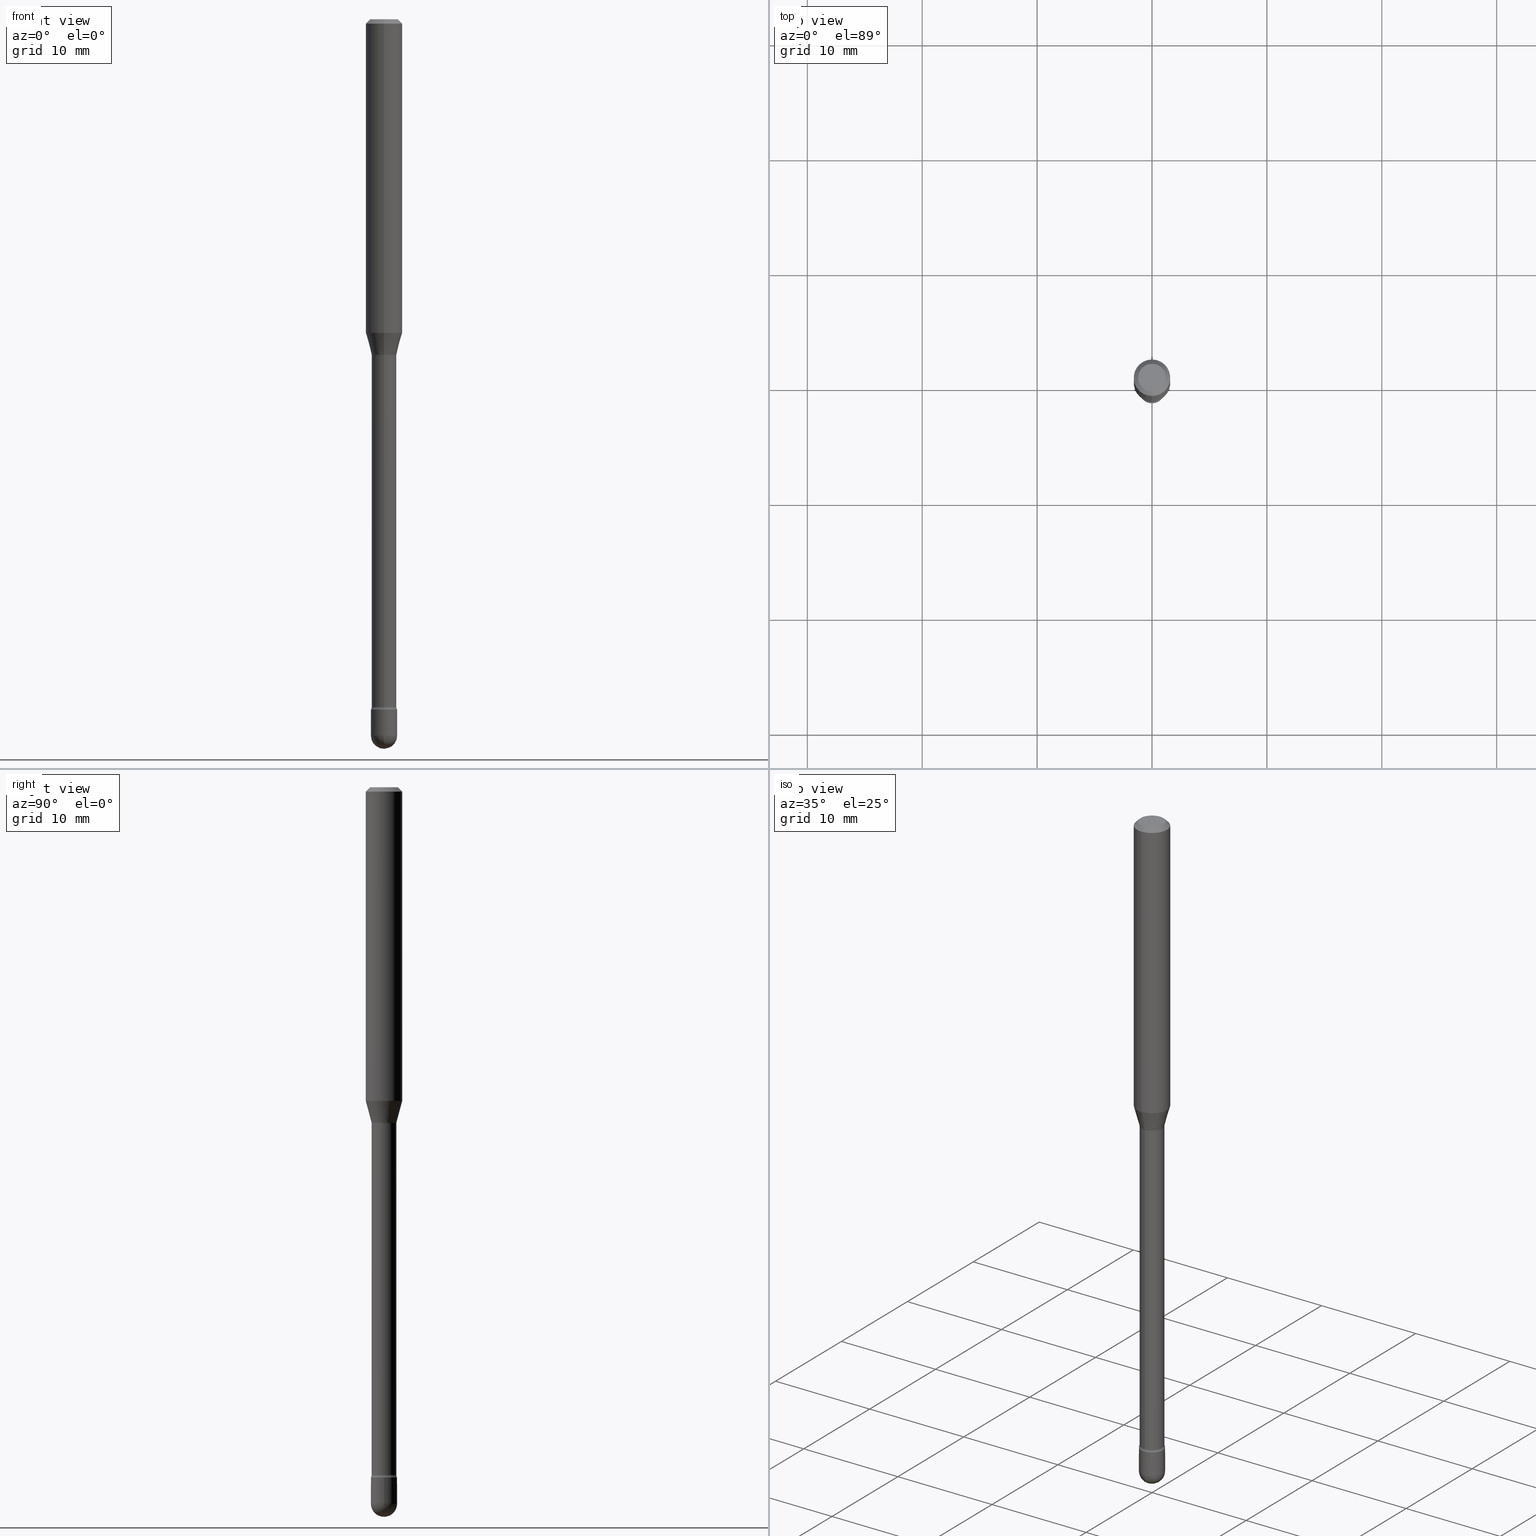
[diagram: canonical four-view strip — front | top / right | iso, engineering-drawing reading convention]
A machine part, canonical four-view strip (front | top / right | iso — engineering-drawing reading convention). The complete STEP part file that produces these views, byte-faithful:
ISO-10303-21;
HEADER;
FILE_DESCRIPTION (( 'STEP AP203' ),
    '1' );
FILE_NAME ('09547.STEP',
    '2024-04-10T00:33:40',
    ( '' ),
    ( '' ),
    'SwSTEP 2.0',
    'SolidWorks 2023',
    '' );
FILE_SCHEMA (( 'CONFIG_CONTROL_DESIGN' ));
ENDSEC;

DATA;
#1 = ADVANCED_FACE ( 'NONE', ( #401 ), #247, .T. ) ;
#2 = APPROVAL_DATE_TIME ( #309, #325 ) ;
#3 = DIRECTION ( 'NONE',  ( -2.445468806185136597E-29, 3.491481338843145583E-15, 1.000000000000000000 ) ) ;
#4 = CIRCLE ( 'NONE', #341, 0.04499999999999999833 ) ;
#5 = CC_DESIGN_APPROVAL ( #536, ( #217 ) ) ;
#6 = APPLICATION_PROTOCOL_DEFINITION ( 'international standard', 'config_control_design', 1994, #410 ) ;
#7 = EDGE_CURVE ( 'NONE', #386, #478, #167, .T. ) ;
#8 = DIRECTION ( 'NONE',  ( -6.982962677686265922E-15, -1.000000000000000000, 3.491385198703219362E-15 ) ) ;
#9 = EDGE_CURVE ( 'NONE', #228, #77, #80, .T. ) ;
#10 = ORIENTED_EDGE ( 'NONE', *, *, #182, .F. ) ;
#11 = DIRECTION ( 'NONE',  ( -6.982962677686266711E-15, -1.000000000000000000, 3.229134744283999085E-15 ) ) ;
#12 = AXIS2_PLACEMENT_3D ( 'NONE', #405, #231, #181 ) ;
#13 = CARTESIAN_POINT ( 'NONE',  ( -2.989484015155474902E-16, -0.04281111260566799331, -1.148092501787272957 ) ) ;
#14 = PRODUCT_DEFINITION_FORMATION_WITH_SPECIFIED_SOURCE ( 'ANY', '', #206, .NOT_KNOWN. ) ;
#15 = CIRCLE ( 'NONE', #414, 0.04499999999999999833 ) ;
#16 = DIRECTION ( 'NONE',  ( -6.982962677686265922E-15, -1.000000000000000000, 3.491385198703219756E-15 ) ) ;
#17 = EDGE_CURVE ( 'NONE', #424, #209, #183, .T. ) ;
#18 = DIRECTION ( 'NONE',  ( 6.982962677686265922E-15, 1.000000000000000000, -6.070773319253922996E-15 ) ) ;
#19 = CARTESIAN_POINT ( 'NONE',  ( 3.101519041593418202E-16, 0.04229999999999190657, -2.356414547187247965 ) ) ;
#20 = EDGE_LOOP ( 'NONE', ( #523, #426, #47, #511 ) ) ;
#21 = CONICAL_SURFACE ( 'NONE', #184, 0.06250000000000000000, 0.7853981633974483900 ) ;
#22 = LOCAL_TIME ( 20, 33, 40.00000000000000000, #343 ) ;
#23 = DIRECTION ( 'NONE',  ( -6.982962677686265922E-15, -1.000000000000000000, 3.491385198703219756E-15 ) ) ;
#24 = ADVANCED_FACE ( 'NONE', ( #446 ), #62, .F. ) ;
#25 = CYLINDRICAL_SURFACE ( 'NONE', #108, 0.04499999999999999833 ) ;
#26 = CARTESIAN_POINT ( 'NONE',  ( -2.953793212661009010E-16, -0.04230000000000402188, -1.151974787463810657 ) ) ;
#27 = EDGE_CURVE ( 'NONE', #559, #245, #460, .T. ) ;
#28 = ORIENTED_EDGE ( 'NONE', *, *, #254, .F. ) ;
#29 = DIRECTION ( 'NONE',  ( 2.445535940486029203E-29, -3.491385198703219756E-15, -1.000000000000000000 ) ) ;
#30 = CIRCLE ( 'NONE', #155, 0.04749999999999999362 ) ;
#31 = FACE_OUTER_BOUND ( 'NONE', #116, .T. ) ;
#32 = CARTESIAN_POINT ( 'NONE',  ( 0.04499999999999999833, -8.571586686859921733E-15, -2.365000000000000213 ) ) ;
#33 = ORIENTED_EDGE ( 'NONE', *, *, #393, .F. ) ;
#34 = CYLINDRICAL_SURFACE ( 'NONE', #500, 0.04499999999999999833 ) ;
#35 = ORIENTED_EDGE ( 'NONE', *, *, #212, .F. ) ;
#36 = PERSON_AND_ORGANIZATION ( #129, #366 ) ;
#37 = FACE_OUTER_BOUND ( 'NONE', #526, .T. ) ;
#38 = ORIENTED_EDGE ( 'NONE', *, *, #111, .F. ) ;
#39 = CIRCLE ( 'NONE', #12, 0.04230000000000013610 ) ;
#40 = LOCAL_TIME ( 20, 33, 40.00000000000000000, #273 ) ;
#41 = VECTOR ( 'NONE', #51, 39.37007874015748143 ) ;
#42 = EDGE_LOOP ( 'NONE', ( #318, #555, #562, #373 ) ) ;
#43 = DIRECTION ( 'NONE',  ( -2.445468806185136597E-29, 3.491481338843145583E-15, 1.000000000000000000 ) ) ;
#44 = DIRECTION ( 'NONE',  ( 6.982962677686265133E-15, 1.000000000000000000, 0.000000000000000000 ) ) ;
#45 = EDGE_CURVE ( 'NONE', #194, #478, #400, .T. ) ;
#46 = DATE_AND_TIME ( #439, #40 ) ;
#47 = ORIENTED_EDGE ( 'NONE', *, *, #308, .T. ) ;
#48 = CARTESIAN_POINT ( 'NONE',  ( -1.169113584055446105E-44, 1.669184350826100908E-30, 4.780733988912460139E-16 ) ) ;
#49 = AXIS2_PLACEMENT_3D ( 'NONE', #135, #319, #357 ) ;
#50 = EDGE_CURVE ( 'NONE', #386, #472, #147, .T. ) ;
#51 = DIRECTION ( 'NONE',  ( -2.445535940486029483E-29, 3.491385198703219756E-15, 1.000000000000000000 ) ) ;
#52 = ORIENTED_EDGE ( 'NONE', *, *, #372, .T. ) ;
#53 = DIRECTION ( 'NONE',  ( -2.445535940486029483E-29, 3.491385198703219756E-15, 1.000000000000000000 ) ) ;
#54 = DATE_AND_TIME ( #226, #193 ) ;
#55 = LINE ( 'NONE', #278, #41 ) ;
#56 = AXIS2_PLACEMENT_3D ( 'NONE', #207, #558, #202 ) ;
#57 = ORIENTED_EDGE ( 'NONE', *, *, #106, .T. ) ;
#58 = ORIENTED_EDGE ( 'NONE', *, *, #250, .T. ) ;
#59 = CARTESIAN_POINT ( 'NONE',  ( 2.807701476123297735E-29, -4.008433167482235797E-15, -1.148092501787273179 ) ) ;
#60 = CARTESIAN_POINT ( 'NONE',  ( 2.817118408254502347E-29, -4.022098473247694493E-15, -1.151974787463810879 ) ) ;
#61 = CONICAL_SURFACE ( 'NONE', #385, 0.04281111260566397569, 0.2617993877991497409 ) ;
#62 = TOROIDAL_SURFACE ( 'NONE', #491, 0.05730000000000012861, 0.01499999999999998904 ) ;
#63 = CARTESIAN_POINT ( 'NONE',  ( 6.003625919184510659E-29, -8.571586686859923311E-15, -2.455000000000000071 ) ) ;
#64 = CARTESIAN_POINT ( 'NONE',  ( -3.773273898774340269E-16, -0.04749999999999999362, 8.308919821021109752E-17 ) ) ;
#65 = ORIENTED_EDGE ( 'NONE', *, *, #229, .F. ) ;
#66 = CARTESIAN_POINT ( 'NONE',  ( 2.817118408254502347E-29, -4.022098473247694493E-15, -1.151974787463810879 ) ) ;
#67 = ADVANCED_FACE ( 'NONE', ( #501 ), #367, .T. ) ;
#68 = CARTESIAN_POINT ( 'NONE',  ( -4.364351673553916201E-16, -0.06250000000000000000, 6.962849738101973226E-16 ) ) ;
#69 = EDGE_LOOP ( 'NONE', ( #337, #356 ) ) ;
#70 = CARTESIAN_POINT ( 'NONE',  ( 3.142333204959397663E-16, 0.04499999999999174105, -2.365000000000000213 ) ) ;
#71 = AXIS2_PLACEMENT_3D ( 'NONE', #200, #461, #158 ) ;
#72 = DIRECTION ( 'NONE',  ( -2.445468806185136597E-29, 3.491481338843145583E-15, 1.000000000000000000 ) ) ;
#73 = EDGE_LOOP ( 'NONE', ( #542, #170 ) ) ;
#74 = CARTESIAN_POINT ( 'NONE',  ( -4.287811248607203282E-16, -0.06250000000000005551, -0.01499999999999986587 ) ) ;
#75 = VERTEX_POINT ( 'NONE', #19 ) ;
#76 = APPROVAL_DATE_TIME ( #220, #396 ) ;
#77 = VERTEX_POINT ( 'NONE', #453 ) ;
#78 = CARTESIAN_POINT ( 'NONE',  ( 0.000000000000000000, 0.000000000000000000, 0.000000000000000000 ) ) ;
#79 = ADVANCED_FACE ( 'NONE', ( #87 ), #282, .T. ) ;
#80 = CIRCLE ( 'NONE', #531, 0.06250000000000000000 ) ;
#81 = AXIS2_PLACEMENT_3D ( 'NONE', #197, #336, #243 ) ;
#82 =( NAMED_UNIT ( * ) PLANE_ANGLE_UNIT ( ) SI_UNIT ( $, .RADIAN. ) );
#83 = PERSON_AND_ORGANIZATION_ROLE ( 'classification_officer' ) ;
#84 = EDGE_LOOP ( 'NONE', ( #163, #513, #408, #90 ) ) ;
#85 = DATE_TIME_ROLE ( 'creation_date' ) ;
#86 = ORIENTED_EDGE ( 'NONE', *, *, #166, .F. ) ;
#87 = FACE_OUTER_BOUND ( 'NONE', #345, .T. ) ;
#88 = CIRCLE ( 'NONE', #235, 0.04230000000000013610 ) ;
#89 = LOCAL_TIME ( 20, 33, 40.00000000000000000, #483 ) ;
#90 = ORIENTED_EDGE ( 'NONE', *, *, #466, .F. ) ;
#91 = DIRECTION ( 'NONE',  ( -2.445535940486029483E-29, 3.491385198703219756E-15, 1.000000000000000000 ) ) ;
#92 = EDGE_CURVE ( 'NONE', #75, #194, #191, .T. ) ;
#93 = DIRECTION ( 'NONE',  ( -2.445468806185136597E-29, 3.491481338843145583E-15, 1.000000000000000000 ) ) ;
#94 = CC_DESIGN_PERSON_AND_ORGANIZATION_ASSIGNMENT ( #214, #565, ( #450 ) ) ;
#95 = CARTESIAN_POINT ( 'NONE',  ( 2.807701476123297735E-29, -4.008433167482235797E-15, -1.148092501787273179 ) ) ;
#96 = VECTOR ( 'NONE', #486, 39.37007874015748854 ) ;
#97 = CARTESIAN_POINT ( 'NONE',  ( 5.762538269587287845E-29, -8.227377418082797086E-15, -2.356414547187247965 ) ) ;
#98 = EDGE_CURVE ( 'NONE', #77, #228, #137, .T. ) ;
#99 = DIRECTION ( 'NONE',  ( -6.982962677686266711E-15, -1.000000000000000000, 3.190582803613979827E-15 ) ) ;
#100 = APPROVAL_DATE_TIME ( #54, #536 ) ;
#101 = ORIENTED_EDGE ( 'NONE', *, *, #495, .F. ) ;
#102 = DESIGN_CONTEXT ( 'detailed design', #363, 'design' ) ;
#103 = EDGE_CURVE ( 'NONE', #77, #422, #55, .T. ) ;
#104 = DIRECTION ( 'NONE',  ( -6.982962677686265922E-15, -1.000000000000000000, 3.491385198703219756E-15 ) ) ;
#105 = DIRECTION ( 'NONE',  ( -2.445535940486029483E-29, 3.491385198703219756E-15, 1.000000000000000000 ) ) ;
#106 = EDGE_CURVE ( 'NONE', #447, #326, #506, .T. ) ;
#107 = DIRECTION ( 'NONE',  ( -2.445468806185136597E-29, 3.491481338843145583E-15, 1.000000000000000000 ) ) ;
#108 = AXIS2_PLACEMENT_3D ( 'NONE', #376, #72, #554 ) ;
#109 = DIRECTION ( 'NONE',  ( -2.445535940486029483E-29, 3.491385198703219756E-15, 1.000000000000000000 ) ) ;
#110 = FACE_OUTER_BOUND ( 'NONE', #454, .T. ) ;
#111 = EDGE_CURVE ( 'NONE', #209, #276, #15, .T. ) ;
#112 = ORIENTED_EDGE ( 'NONE', *, *, #279, .F. ) ;
#113 = CARTESIAN_POINT ( 'NONE',  ( -1.169113584055446105E-44, 1.669184350826100908E-30, 4.780733988912460139E-16 ) ) ;
#114 = DIRECTION ( 'NONE',  ( -6.982962677686266711E-15, -1.000000000000000000, 6.458269488567977659E-15 ) ) ;
#115 = ORIENTED_EDGE ( 'NONE', *, *, #495, .T. ) ;
#116 = EDGE_LOOP ( 'NONE', ( #101, #302, #219, #263 ) ) ;
#117 = CIRCLE ( 'NONE', #256, 0.04281111260566397569 ) ;
#118 = AXIS2_PLACEMENT_3D ( 'NONE', #402, #362, #455 ) ;
#119 = CARTESIAN_POINT ( 'NONE',  ( 5.762696465830526274E-29, -8.227150872058505933E-15, -2.356414547187247521 ) ) ;
#120 = VERTEX_POINT ( 'NONE', #407 ) ;
#121 =( CONVERSION_BASED_UNIT ( 'INCH', #563 ) LENGTH_UNIT ( ) NAMED_UNIT ( #347 ) );
#122 = CARTESIAN_POINT ( 'NONE',  ( 6.115596139613495537E-29, -8.725947891809782708E-15, -2.500000000000000000 ) ) ;
#123 = ADVANCED_FACE ( 'NONE', ( #31 ), #21, .T. ) ;
#124 = APPROVAL_ROLE ( '' ) ;
#125 = EDGE_LOOP ( 'NONE', ( #33, #204, #211, #223, #444 ) ) ;
#126 = DIRECTION ( 'NONE',  ( 0.000000000000000000, 0.000000000000000000, 1.000000000000000000 ) ) ;
#127 = CIRCLE ( 'NONE', #459, 0.04499999999999996364 ) ;
#128 = LOCAL_TIME ( 20, 33, 40.00000000000000000, #171 ) ;
#129 = PERSON ( 'UNSPECIFIED', 'UNSPECIFIED', 'UNSPECIFIED', ('UNSPECIFIED'), ('UNSPECIFIED'), ('UNSPECIFIED') ) ;
#130 = CALENDAR_DATE ( 2024, 9, 4 ) ;
#131 = APPLICATION_PROTOCOL_DEFINITION ( 'international standard', 'config_control_design', 1994, #363 ) ;
#132 = MANIFOLD_SOLID_BREP ( 'Body-Move/Copy2[1]', #215 ) ;
#133 = CARTESIAN_POINT ( 'NONE',  ( -3.142333204958240503E-16, -0.04500000000000824174, -2.364999999999999769 ) ) ;
#134 = ORIENTED_EDGE ( 'NONE', *, *, #361, .T. ) ;
#135 = CARTESIAN_POINT ( 'NONE',  ( 5.783692499249460010E-29, -8.257125994933115699E-15, -2.365000000000000213 ) ) ;
#136 = CIRCLE ( 'NONE', #320, 0.04229999999999999732 ) ;
#137 = CIRCLE ( 'NONE', #295, 0.06250000000000000000 ) ;
#138 = CARTESIAN_POINT ( 'NONE',  ( -0.04499999999999999833, 3.197442310920450718E-16, -2.213520790614707560E-30 ) ) ;
#139 = CARTESIAN_POINT ( 'NONE',  ( 2.807701476123297735E-29, -4.008433167482235797E-15, -1.148092501787273179 ) ) ;
#140 = PRODUCT_DEFINITION_SHAPE ( 'NONE', 'NONE',  #450 ) ;
#141 = CC_DESIGN_PERSON_AND_ORGANIZATION_ASSIGNMENT ( #169, #525, ( #206 ) ) ;
#142 = VERTEX_POINT ( 'NONE', #370 ) ;
#143 = DIRECTION ( 'NONE',  ( -2.445468806185136877E-29, 3.491481338843145188E-15, 1.000000000000000000 ) ) ;
#144 = AXIS2_PLACEMENT_3D ( 'NONE', #66, #299, #104 ) ;
#145 = SHAPE_DEFINITION_REPRESENTATION ( #140, #176 ) ;
#146 = DIRECTION ( 'NONE',  ( -2.445535940486029483E-29, 3.491385198703219756E-15, 1.000000000000000000 ) ) ;
#147 = CIRCLE ( 'NONE', #435, 0.04281111260566397569 ) ;
#148 = ADVANCED_FACE ( 'NONE', ( #255 ), #210, .T. ) ;
#149 = CARTESIAN_POINT ( 'NONE',  ( 3.041912507176499782E-16, 0.04281111260565996501, -1.148092501787273179 ) ) ;
#150 = CARTESIAN_POINT ( 'NONE',  ( 2.817195745276504694E-29, -4.021987722230436486E-15, -1.151974787463810879 ) ) ;
#151 = DIRECTION ( 'NONE',  ( 1.839019923739596765E-15, 0.2588190451025244587, 0.9659258262890673130 ) ) ;
#152 = FACE_OUTER_BOUND ( 'NONE', #20, .T. ) ;
#153 = ORIENTED_EDGE ( 'NONE', *, *, #288, .F. ) ;
#154 = DIRECTION ( 'NONE',  ( 1.000000000000000000, -6.982962677686269077E-15, 0.000000000000000000 ) ) ;
#155 = AXIS2_PLACEMENT_3D ( 'NONE', #550, #423, #335 ) ;
#156 = CARTESIAN_POINT ( 'NONE',  ( 3.005595772265804395E-16, 0.04229999999999597970, -1.151974787463810879 ) ) ;
#157 = ORIENTED_EDGE ( 'NONE', *, *, #208, .F. ) ;
#158 = DIRECTION ( 'NONE',  ( -6.982962677686266711E-15, -1.000000000000000000, 3.491385198703217784E-15 ) ) ;
#159 = CARTESIAN_POINT ( 'NONE',  ( -4.364351673553912750E-16, -0.06250000000000005551, -0.01499999999999986587 ) ) ;
#160 = ORIENTED_EDGE ( 'NONE', *, *, #9, .F. ) ;
#161 = CARTESIAN_POINT ( 'NONE',  ( 6.003625919184510659E-29, -8.571586686859921733E-15, -2.455000000000000071 ) ) ;
#162 = CARTESIAN_POINT ( 'NONE',  ( -0.04499999999999999833, -8.094725795519935522E-15, -2.455000000000000071 ) ) ;
#163 = ORIENTED_EDGE ( 'NONE', *, *, #103, .F. ) ;
#164 = APPROVAL_STATUS ( 'not_yet_approved' ) ;
#165 = VECTOR ( 'NONE', #205, 39.37007874015748143 ) ;
#166 = EDGE_CURVE ( 'NONE', #472, #194, #173, .T. ) ;
#167 = CIRCLE ( 'NONE', #118, 0.01500000000000000291 ) ;
#168 = ORIENTED_EDGE ( 'NONE', *, *, #27, .F. ) ;
#169 = PERSON_AND_ORGANIZATION ( #129, #366 ) ;
#170 = ORIENTED_EDGE ( 'NONE', *, *, #469, .F. ) ;
#171 = COORDINATED_UNIVERSAL_TIME_OFFSET ( 5, 0, .BEHIND. ) ;
#172 = PERSON_AND_ORGANIZATION ( #129, #366 ) ;
#173 = CIRCLE ( 'NONE', #365, 0.01500000000000000291 ) ;
#174 = FACE_OUTER_BOUND ( 'NONE', #69, .T. ) ;
#175 = ORIENTED_EDGE ( 'NONE', *, *, #436, .T. ) ;
#176 = ADVANCED_BREP_SHAPE_REPRESENTATION ( '09547', ( #132, #485, #344 ), #353 ) ;
#177 = DIRECTION ( 'NONE',  ( 1.000000000000000000, -6.982962677686265922E-15, 4.876176775795935793E-29 ) ) ;
#178 = ORIENTED_EDGE ( 'NONE', *, *, #9, .T. ) ;
#179 = DIRECTION ( 'NONE',  ( -6.982962677686266711E-15, -1.000000000000000000, 3.190582803613979827E-15 ) ) ;
#180 = ORIENTED_EDGE ( 'NONE', *, *, #469, .T. ) ;
#181 = DIRECTION ( 'NONE',  ( -6.982962677686266711E-15, -1.000000000000000000, 6.458269488567977659E-15 ) ) ;
#182 = EDGE_CURVE ( 'NONE', #447, #75, #88, .T. ) ;
#183 = LINE ( 'NONE', #287, #418 ) ;
#184 = AXIS2_PLACEMENT_3D ( 'NONE', #541, #383, #417 ) ;
#185 = AXIS2_PLACEMENT_3D ( 'NONE', #60, #419, #23 ) ;
#186 = DIRECTION ( 'NONE',  ( -2.445535940486029483E-29, 3.491385198703219756E-15, 1.000000000000000000 ) ) ;
#187 = SPHERICAL_SURFACE ( 'NONE', #203, 0.04499999999999996364 ) ;
#188 = COORDINATED_UNIVERSAL_TIME_OFFSET ( 5, 0, .BEHIND. ) ;
#189 = CC_DESIGN_DATE_AND_TIME_ASSIGNMENT ( #46, #479, ( #217 ) ) ;
#190 = VERTEX_POINT ( 'NONE', #162 ) ;
#191 = LINE ( 'NONE', #411, #322 ) ;
#192 = CIRCLE ( 'NONE', #49, 0.04499999999999999833 ) ;
#193 = LOCAL_TIME ( 20, 33, 40.00000000000000000, #188 ) ;
#194 = VERTEX_POINT ( 'NONE', #156 ) ;
#195 = PLANE ( 'NONE',  #244 ) ;
#196 = AXIS2_PLACEMENT_3D ( 'NONE', #355, #240, #404 ) ;
#197 = CARTESIAN_POINT ( 'NONE',  ( 6.003625919184510659E-29, -8.571586686859921733E-15, -2.455000000000000071 ) ) ;
#198 = CARTESIAN_POINT ( 'NONE',  ( -2.953793212661295465E-16, -0.04230000000000006671, 6.257589927963924165E-16 ) ) ;
#199 = ORIENTED_EDGE ( 'NONE', *, *, #166, .T. ) ;
#200 = CARTESIAN_POINT ( 'NONE',  ( -1.169113584055446105E-44, 1.669184350826100908E-30, 4.780733988912460139E-16 ) ) ;
#201 = ADVANCED_FACE ( 'NONE', ( #248 ), #25, .T. ) ;
#202 = DIRECTION ( 'NONE',  ( 6.982962677686265922E-15, 1.000000000000000000, -6.070773319253922996E-15 ) ) ;
#203 = AXIS2_PLACEMENT_3D ( 'NONE', #403, #239, #18 ) ;
#204 = ORIENTED_EDGE ( 'NONE', *, *, #272, .T. ) ;
#205 = DIRECTION ( 'NONE',  ( -4.851104656540964275E-15, -0.7071067811865500152, -0.7071067811865450192 ) ) ;
#206 = PRODUCT ( '09547', '09547', '', ( #387 ) ) ;
#207 = CARTESIAN_POINT ( 'NONE',  ( 6.003625919184510659E-29, -8.571586686859923311E-15, -2.455000000000000071 ) ) ;
#208 = EDGE_CURVE ( 'NONE', #280, #190, #560, .T. ) ;
#209 = VERTEX_POINT ( 'NONE', #32 ) ;
#210 = SPHERICAL_SURFACE ( 'NONE', #56, 0.04499999999999996364 ) ;
#211 = ORIENTED_EDGE ( 'NONE', *, *, #430, .T. ) ;
#212 = EDGE_CURVE ( 'NONE', #472, #386, #117, .T. ) ;
#213 = VERTEX_POINT ( 'NONE', #159 ) ;
#214 = PERSON_AND_ORGANIZATION ( #129, #366 ) ;
#215 = CLOSED_SHELL ( 'NONE', ( #201, #360, #267, #148, #534 ) ) ;
#216 = CIRCLE ( 'NONE', #470, 0.04499999999999999833 ) ;
#217 = SECURITY_CLASSIFICATION ( '', '', #346 ) ;
#218 = CARTESIAN_POINT ( 'NONE',  ( 6.003625919184510659E-29, -8.571586686859921733E-15, -2.455000000000000071 ) ) ;
#219 = ORIENTED_EDGE ( 'NONE', *, *, #279, .T. ) ;
#220 = DATE_AND_TIME ( #130, #22 ) ;
#221 = EDGE_CURVE ( 'NONE', #228, #213, #467, .T. ) ;
#222 = CARTESIAN_POINT ( 'NONE',  ( 4.364351673553919652E-16, 0.06249999999999995143, -0.01500000000000030129 ) ) ;
#223 = ORIENTED_EDGE ( 'NONE', *, *, #17, .T. ) ;
#224 = AXIS2_PLACEMENT_3D ( 'NONE', #543, #29, #427 ) ;
#225 = DIRECTION ( 'NONE',  ( -2.445535940486029483E-29, 3.491385198703219756E-15, 1.000000000000000000 ) ) ;
#226 = CALENDAR_DATE ( 2024, 9, 4 ) ;
#227 = CARTESIAN_POINT ( 'NONE',  ( 5.762538269587287845E-29, -8.227377418082797086E-15, -2.356414547187247965 ) ) ;
#228 = VERTEX_POINT ( 'NONE', #548 ) ;
#229 = EDGE_CURVE ( 'NONE', #213, #422, #375, .T. ) ;
#230 = ORIENTED_EDGE ( 'NONE', *, *, #50, .T. ) ;
#231 = DIRECTION ( 'NONE',  ( -2.445535940486029483E-29, 3.491385198703219756E-15, 1.000000000000000000 ) ) ;
#232 = CARTESIAN_POINT ( 'NONE',  ( -4.001237614313663153E-16, -0.05730000000000835814, -2.356414547187247521 ) ) ;
#233 = ADVANCED_FACE ( 'NONE', ( #152 ), #61, .T. ) ;
#234 = DIRECTION ( 'NONE',  ( 1.000000000000000000, -6.982962677686269077E-15, 0.000000000000000000 ) ) ;
#235 = AXIS2_PLACEMENT_3D ( 'NONE', #119, #380, #114 ) ;
#236 = CIRCLE ( 'NONE', #481, 0.04499999999999999833 ) ;
#237 = CC_DESIGN_APPROVAL ( #325, ( #14 ) ) ;
#238 = ORIENTED_EDGE ( 'NONE', *, *, #103, .T. ) ;
#239 = DIRECTION ( 'NONE',  ( -1.000000000000000000, 6.982962677686265922E-15, -4.883557194083112340E-29 ) ) ;
#240 = DIRECTION ( 'NONE',  ( -2.445535940486029483E-29, 3.491385198703219756E-15, 1.000000000000000000 ) ) ;
#241 = DIRECTION ( 'NONE',  ( -2.445535940486029483E-29, 3.491385198703219756E-15, 1.000000000000000000 ) ) ;
#242 = ORIENTED_EDGE ( 'NONE', *, *, #208, .T. ) ;
#243 = DIRECTION ( 'NONE',  ( 1.000000000000000000, -6.982962677686269077E-15, 0.000000000000000000 ) ) ;
#244 = AXIS2_PLACEMENT_3D ( 'NONE', #70, #369, #425 ) ;
#245 = VERTEX_POINT ( 'NONE', #544 ) ;
#246 = DIRECTION ( 'NONE',  ( -6.982962677686266711E-15, -1.000000000000000000, 3.491385198703217784E-15 ) ) ;
#247 = CONICAL_SURFACE ( 'NONE', #538, 0.06250000000000000000, 0.7853981633974483900 ) ;
#248 = FACE_OUTER_BOUND ( 'NONE', #350, .T. ) ;
#249 = CARTESIAN_POINT ( 'NONE',  ( 3.668303910729064596E-31, -5.237077798054858847E-17, -0.01500000000000008271 ) ) ;
#250 = EDGE_CURVE ( 'NONE', #478, #194, #136, .T. ) ;
#251 = DIRECTION ( 'NONE',  ( 7.105427357601001859E-15, 1.000000000000000000, 0.000000000000000000 ) ) ;
#252 = ORIENTED_EDGE ( 'NONE', *, *, #522, .T. ) ;
#253 = LINE ( 'NONE', #149, #537 ) ;
#254 = EDGE_CURVE ( 'NONE', #257, #280, #127, .T. ) ;
#255 = FACE_OUTER_BOUND ( 'NONE', #354, .T. ) ;
#256 = AXIS2_PLACEMENT_3D ( 'NONE', #331, #260, #300 ) ;
#257 = VERTEX_POINT ( 'NONE', #122 ) ;
#258 = DIRECTION ( 'NONE',  ( -2.445535940486029483E-29, 3.491385198703219756E-15, 1.000000000000000000 ) ) ;
#259 = VECTOR ( 'NONE', #503, 39.37007874015748143 ) ;
#260 = DIRECTION ( 'NONE',  ( -2.445535940486029483E-29, 3.491385198703219756E-15, 1.000000000000000000 ) ) ;
#261 = ORIENTED_EDGE ( 'NONE', *, *, #7, .F. ) ;
#262 = PLANE ( 'NONE',  #224 ) ;
#263 = ORIENTED_EDGE ( 'NONE', *, *, #466, .T. ) ;
#264 = APPROVAL_ROLE ( '' ) ;
#265 = EDGE_LOOP ( 'NONE', ( #35, #199, #496, #261 ) ) ;
#266 = PERSON_AND_ORGANIZATION ( #129, #366 ) ;
#267 = ADVANCED_FACE ( 'NONE', ( #174 ), #431, .T. ) ;
#268 = TOROIDAL_SURFACE ( 'NONE', #452, 0.05730000000000012861, 0.01499999999999998904 ) ;
#269 = AXIS2_PLACEMENT_3D ( 'NONE', #232, #533, #324 ) ;
#270 = LINE ( 'NONE', #222, #433 ) ;
#271 = CALENDAR_DATE ( 2024, 9, 4 ) ;
#272 = EDGE_CURVE ( 'NONE', #190, #120, #301, .T. ) ;
#273 = COORDINATED_UNIVERSAL_TIME_OFFSET ( 5, 0, .BEHIND. ) ;
#274 = FACE_OUTER_BOUND ( 'NONE', #84, .T. ) ;
#275 = PERSON_AND_ORGANIZATION ( #129, #366 ) ;
#276 = VERTEX_POINT ( 'NONE', #477 ) ;
#277 = AXIS2_PLACEMENT_3D ( 'NONE', #249, #296, #338 ) ;
#278 = CARTESIAN_POINT ( 'NONE',  ( 4.440892098500625669E-16, 0.06250000000000000000, 2.598618239722948531E-16 ) ) ;
#279 = EDGE_CURVE ( 'NONE', #245, #422, #270, .T. ) ;
#280 = VERTEX_POINT ( 'NONE', #566 ) ;
#281 = DIRECTION ( 'NONE',  ( 7.105427357600997914E-15, 1.000000000000000000, 0.000000000000000000 ) ) ;
#282 = CYLINDRICAL_SURFACE ( 'NONE', #196, 0.06250000000000000000 ) ;
#283 = CARTESIAN_POINT ( 'NONE',  ( 4.440892098500889444E-16, 0.06249999999999995143, -0.01500000000000030129 ) ) ;
#284 = DIRECTION ( 'NONE',  ( -6.982962677686266711E-15, -1.000000000000000000, 3.491385198703219756E-15 ) ) ;
#285 = AXIS2_PLACEMENT_3D ( 'NONE', #304, #471, #333 ) ;
#286 = CC_DESIGN_SECURITY_CLASSIFICATION ( #217, ( #14 ) ) ;
#287 = CARTESIAN_POINT ( 'NONE',  ( 0.04499999999999999833, -3.142333204958819823E-16, 2.194279549108170967E-30 ) ) ;
#288 = EDGE_CURVE ( 'NONE', #424, #280, #216, .T. ) ;
#289 = CARTESIAN_POINT ( 'NONE',  ( 0.04499999999999999833, -8.728703347107863365E-15, -2.455000000000000071 ) ) ;
#290 = AXIS2_PLACEMENT_3D ( 'NONE', #327, #412, #284 ) ;
#291 = DIRECTION ( 'NONE',  ( -6.982962677686266711E-15, -1.000000000000000000, 3.229134744283999085E-15 ) ) ;
#292 = AXIS2_PLACEMENT_3D ( 'NONE', #48, #225, #8 ) ;
#293 = CC_DESIGN_APPROVAL ( #396, ( #450 ) ) ;
#294 = CARTESIAN_POINT ( 'NONE',  ( 5.783692499249460010E-29, -8.257125994933115699E-15, -2.365000000000000213 ) ) ;
#295 = AXIS2_PLACEMENT_3D ( 'NONE', #539, #186, #317 ) ;
#296 = DIRECTION ( 'NONE',  ( -2.445535940486029483E-29, 3.491385198703219756E-15, 1.000000000000000000 ) ) ;
#297 = CARTESIAN_POINT ( 'NONE',  ( 4.071409875905655853E-16, 0.05729999999999599303, -1.151974787463811101 ) ) ;
#298 = ORIENTED_EDGE ( 'NONE', *, *, #272, .F. ) ;
#299 = DIRECTION ( 'NONE',  ( -2.445535940486029483E-29, 3.491385198703219756E-15, 1.000000000000000000 ) ) ;
#300 = DIRECTION ( 'NONE',  ( -6.982962677686266711E-15, -1.000000000000000000, 3.190582803613979827E-15 ) ) ;
#301 = CIRCLE ( 'NONE', #482, 0.04499999999999999833 ) ;
#302 = ORIENTED_EDGE ( 'NONE', *, *, #436, .F. ) ;
#303 = CARTESIAN_POINT ( 'NONE',  ( 3.741402302838694366E-16, 0.04281111260565996501, -1.148092501787273179 ) ) ;
#304 = CARTESIAN_POINT ( 'NONE',  ( 3.668303910729064596E-31, -5.237077798054858847E-17, -0.01500000000000008271 ) ) ;
#305 = ORIENTED_EDGE ( 'NONE', *, *, #557, .F. ) ;
#306 = APPROVAL_STATUS ( 'not_yet_approved' ) ;
#307 = DIRECTION ( 'NONE',  ( 1.000000000000000000, -6.982962677686269077E-15, 0.000000000000000000 ) ) ;
#308 = EDGE_CURVE ( 'NONE', #386, #228, #524, .T. ) ;
#309 = DATE_AND_TIME ( #271, #89 ) ;
#310 =( LENGTH_UNIT ( ) NAMED_UNIT ( * ) SI_UNIT ( $, .METRE. ) );
#311 = ADVANCED_FACE ( 'NONE', ( #274 ), #527, .T. ) ;
#312 = VECTOR ( 'NONE', #339, 39.37007874015748143 ) ;
#313 = TOROIDAL_SURFACE ( 'NONE', #185, 0.05730000000000001065, 0.01500000000000000291 ) ;
#314 = DATE_AND_TIME ( #487, #128 ) ;
#315 = PERSON_AND_ORGANIZATION ( #129, #366 ) ;
#316 = ORIENTED_EDGE ( 'NONE', *, *, #254, .T. ) ;
#317 = DIRECTION ( 'NONE',  ( -6.982962677686265922E-15, -1.000000000000000000, 4.370956789862821150E-15 ) ) ;
#318 = ORIENTED_EDGE ( 'NONE', *, *, #92, .F. ) ;
#319 = DIRECTION ( 'NONE',  ( -2.445535940486029483E-29, 3.491385198703219756E-15, 1.000000000000000000 ) ) ;
#320 = AXIS2_PLACEMENT_3D ( 'NONE', #150, #105, #291 ) ;
#321 = CARTESIAN_POINT ( 'NONE',  ( 2.817195745276504694E-29, -4.021987722230436486E-15, -1.151974787463810879 ) ) ;
#322 = VECTOR ( 'NONE', #53, 39.37007874015748143 ) ;
#323 = DIRECTION ( 'NONE',  ( -2.445468806185136877E-29, 3.491481338843145188E-15, 1.000000000000000000 ) ) ;
#324 = DIRECTION ( 'NONE',  ( -6.982962677686262766E-15, -1.000000000000000000, 0.000000000000000000 ) ) ;
#325 = APPROVAL ( #437, 'UNSPECIFIED' ) ;
#326 = VERTEX_POINT ( 'NONE', #133 ) ;
#327 = CARTESIAN_POINT ( 'NONE',  ( 2.024041039458811303E-45, -2.888717449251730073E-31, -8.275159872819182610E-17 ) ) ;
#328 = AXIS2_PLACEMENT_3D ( 'NONE', #161, #107, #154 ) ;
#329 = CYLINDRICAL_SURFACE ( 'NONE', #71, 0.04230000000000006671 ) ;
#330 = ADVANCED_FACE ( 'NONE', ( #37 ), #268, .F. ) ;
#331 = CARTESIAN_POINT ( 'NONE',  ( 2.807701476123297735E-29, -4.008433167482235797E-15, -1.148092501787273179 ) ) ;
#332 = CARTESIAN_POINT ( 'NONE',  ( 0.000000000000000000, 0.000000000000000000, 0.000000000000000000 ) ) ;
#333 = DIRECTION ( 'NONE',  ( -6.982962677686265922E-15, -1.000000000000000000, 3.483106191921935554E-15 ) ) ;
#334 = VECTOR ( 'NONE', #323, 39.37007874015748143 ) ;
#335 = DIRECTION ( 'NONE',  ( -6.982962677686266711E-15, -1.000000000000000000, 3.491385198703219756E-15 ) ) ;
#336 = DIRECTION ( 'NONE',  ( -2.445468806185136597E-29, 3.491481338843145583E-15, 1.000000000000000000 ) ) ;
#337 = ORIENTED_EDGE ( 'NONE', *, *, #111, .T. ) ;
#338 = DIRECTION ( 'NONE',  ( -6.982962677686265922E-15, -1.000000000000000000, 3.483106191921935554E-15 ) ) ;
#339 = DIRECTION ( 'NONE',  ( -2.445535940486029483E-29, 3.491385198703219756E-15, 1.000000000000000000 ) ) ;
#340 = DIRECTION ( 'NONE',  ( -6.982962677686265133E-15, -1.000000000000000000, 6.070773319253918263E-15 ) ) ;
#341 = AXIS2_PLACEMENT_3D ( 'NONE', #509, #464, #514 ) ;
#342 = ORIENTED_EDGE ( 'NONE', *, *, #27, .T. ) ;
#343 = COORDINATED_UNIVERSAL_TIME_OFFSET ( 5, 0, .BEHIND. ) ;
#344 = AXIS2_PLACEMENT_3D ( 'NONE', #78, #126, #351 ) ;
#345 = EDGE_LOOP ( 'NONE', ( #178, #238, #65, #519 ) ) ;
#346 = SECURITY_CLASSIFICATION_LEVEL ( 'unclassified' ) ;
#347 = DIMENSIONAL_EXPONENTS ( 1.000000000000000000, 0.000000000000000000, 0.000000000000000000, 0.000000000000000000, 0.000000000000000000, 0.000000000000000000, 0.000000000000000000 ) ;
#348 = DIRECTION ( 'NONE',  ( 1.000000000000000000, -6.982962677686265922E-15, 4.883557194083112340E-29 ) ) ;
#349 = CC_DESIGN_DATE_AND_TIME_ASSIGNMENT ( #314, #85, ( #450 ) ) ;
#350 = EDGE_LOOP ( 'NONE', ( #242, #384, #38, #463, #390 ) ) ;
#351 = DIRECTION ( 'NONE',  ( 1.000000000000000000, 0.000000000000000000, 0.000000000000000000 ) ) ;
#352 = CIRCLE ( 'NONE', #443, 0.04499999999999996364 ) ;
#353 =( GEOMETRIC_REPRESENTATION_CONTEXT ( 3 ) GLOBAL_UNCERTAINTY_ASSIGNED_CONTEXT ( ( #540 ) ) GLOBAL_UNIT_ASSIGNED_CONTEXT ( ( #121, #82, #394 ) ) REPRESENTATION_CONTEXT ( 'NONE', 'WORKASPACE' ) );
#354 = EDGE_LOOP ( 'NONE', ( #399, #316, #153, #457 ) ) ;
#355 = CARTESIAN_POINT ( 'NONE',  ( -1.169113584055446105E-44, 1.669184350826100908E-30, 4.780733988912460139E-16 ) ) ;
#356 = ORIENTED_EDGE ( 'NONE', *, *, #492, .T. ) ;
#357 = DIRECTION ( 'NONE',  ( -6.982962677686265133E-15, -1.000000000000000000, 6.070773319253918263E-15 ) ) ;
#358 = CIRCLE ( 'NONE', #328, 0.04499999999999999833 ) ;
#359 = DIRECTION ( 'NONE',  ( 6.982962677686265922E-15, 1.000000000000000000, -3.483106191921935554E-15 ) ) ;
#360 = ADVANCED_FACE ( 'NONE', ( #456 ), #187, .T. ) ;
#361 = EDGE_CURVE ( 'NONE', #257, #120, #352, .T. ) ;
#362 = DIRECTION ( 'NONE',  ( -1.000000000000000000, 6.982962677686265922E-15, -4.883557194083112340E-29 ) ) ;
#363 = APPLICATION_CONTEXT ( 'configuration controlled 3d designs of mechanical parts and assemblies' ) ;
#364 = DIRECTION ( 'NONE',  ( -2.445535940486029483E-29, 3.491385198703219756E-15, 1.000000000000000000 ) ) ;
#365 = AXIS2_PLACEMENT_3D ( 'NONE', #297, #551, #251 ) ;
#366 = ORGANIZATION ( 'UNSPECIFIED', 'UNSPECIFIED', '' ) ;
#367 = CONICAL_SURFACE ( 'NONE', #445, 0.04281111260566397569, 0.2617993877991497409 ) ;
#368 = ORIENTED_EDGE ( 'NONE', *, *, #106, .F. ) ;
#369 = DIRECTION ( 'NONE',  ( -2.445535940486029203E-29, 3.491385198703219756E-15, 1.000000000000000000 ) ) ;
#370 = CARTESIAN_POINT ( 'NONE',  ( 3.197442310921028066E-16, 0.04499999999999173411, -2.365000000000000213 ) ) ;
#371 = FACE_OUTER_BOUND ( 'NONE', #42, .T. ) ;
#372 = EDGE_CURVE ( 'NONE', #326, #142, #192, .T. ) ;
#373 = ORIENTED_EDGE ( 'NONE', *, *, #45, .F. ) ;
#374 = FACE_OUTER_BOUND ( 'NONE', #125, .T. ) ;
#375 = CIRCLE ( 'NONE', #285, 0.06250000000000000000 ) ;
#376 = CARTESIAN_POINT ( 'NONE',  ( 0.000000000000000000, 0.000000000000000000, 0.000000000000000000 ) ) ;
#377 = EDGE_CURVE ( 'NONE', #75, #142, #415, .T. ) ;
#378 = EDGE_LOOP ( 'NONE', ( #381, #508, #180, #368 ) ) ;
#379 = DIRECTION ( 'NONE',  ( 1.000000000000000000, -6.982962677686266711E-15, 4.876176775795935793E-29 ) ) ;
#380 = DIRECTION ( 'NONE',  ( -2.445535940486029483E-29, 3.491385198703219756E-15, 1.000000000000000000 ) ) ;
#381 = ORIENTED_EDGE ( 'NONE', *, *, #388, .F. ) ;
#382 = LINE ( 'NONE', #198, #259 ) ;
#383 = DIRECTION ( 'NONE',  ( 2.445535940486029483E-29, -3.491385198703219756E-15, -1.000000000000000000 ) ) ;
#384 = ORIENTED_EDGE ( 'NONE', *, *, #393, .T. ) ;
#385 = AXIS2_PLACEMENT_3D ( 'NONE', #59, #109, #462 ) ;
#386 = VERTEX_POINT ( 'NONE', #13 ) ;
#387 = MECHANICAL_CONTEXT ( 'NONE', #410, 'mechanical' ) ;
#388 = EDGE_CURVE ( 'NONE', #75, #447, #39, .T. ) ;
#389 = DIRECTION ( 'NONE',  ( 1.000000000000000000, -6.982962677686269077E-15, 0.000000000000000000 ) ) ;
#390 = ORIENTED_EDGE ( 'NONE', *, *, #288, .T. ) ;
#391 = APPROVAL_ROLE ( '' ) ;
#392 = DIRECTION ( 'NONE',  ( 4.937700262164548042E-15, 0.7071067811865451302, -0.7071067811865499042 ) ) ;
#393 = EDGE_CURVE ( 'NONE', #190, #276, #532, .T. ) ;
#394 =( NAMED_UNIT ( * ) SI_UNIT ( $, .STERADIAN. ) SOLID_ANGLE_UNIT ( ) );
#395 = CARTESIAN_POINT ( 'NONE',  ( 6.003625919184510659E-29, -8.571586686859921733E-15, -2.455000000000000071 ) ) ;
#396 = APPROVAL ( #164, 'UNSPECIFIED' ) ;
#397 = PERSON_AND_ORGANIZATION_ROLE ( 'creator' ) ;
#398 = CIRCLE ( 'NONE', #277, 0.06250000000000000000 ) ;
#399 = ORIENTED_EDGE ( 'NONE', *, *, #361, .F. ) ;
#400 = CIRCLE ( 'NONE', #561, 0.04229999999999999732 ) ;
#401 = FACE_OUTER_BOUND ( 'NONE', #413, .T. ) ;
#402 = CARTESIAN_POINT ( 'NONE',  ( -4.001237614313949608E-16, -0.05730000000000403521, -1.151974787463810879 ) ) ;
#403 = CARTESIAN_POINT ( 'NONE',  ( 6.003625919184510659E-29, -8.571586686859923311E-15, -2.455000000000000071 ) ) ;
#404 = DIRECTION ( 'NONE',  ( -6.982962677686265922E-15, -1.000000000000000000, 3.491385198703219362E-15 ) ) ;
#405 = CARTESIAN_POINT ( 'NONE',  ( 5.762696465830526274E-29, -8.227150872058505933E-15, -2.356414547187247521 ) ) ;
#406 = CC_DESIGN_PERSON_AND_ORGANIZATION_ASSIGNMENT ( #172, #476, ( #14 ) ) ;
#407 = CARTESIAN_POINT ( 'NONE',  ( -3.197442310919848226E-16, -0.04500000000000855399, -2.454999999999999627 ) ) ;
#408 = ORIENTED_EDGE ( 'NONE', *, *, #221, .T. ) ;
#409 = DIRECTION ( 'NONE',  ( 1.000000000000000000, -7.105427357601001070E-15, 4.926314331164936241E-29 ) ) ;
#410 = APPLICATION_CONTEXT ( 'configuration controlled 3d designs of mechanical parts and assemblies' ) ;
#411 = CARTESIAN_POINT ( 'NONE',  ( 3.005595772265228033E-16, 0.04230000000000006671, 3.303878049860996607E-16 ) ) ;
#412 = DIRECTION ( 'NONE',  ( -2.445535940486029483E-29, 3.491385198703219756E-15, 1.000000000000000000 ) ) ;
#413 = EDGE_LOOP ( 'NONE', ( #168, #115, #440, #112 ) ) ;
#414 = AXIS2_PLACEMENT_3D ( 'NONE', #494, #93, #234 ) ;
#415 = CIRCLE ( 'NONE', #516, 0.01499999999999999424 ) ;
#416 = APPROVAL_PERSON_ORGANIZATION ( #315, #396, #391 ) ;
#417 = DIRECTION ( 'NONE',  ( 6.982962677686265922E-15, 1.000000000000000000, -3.483106191921935554E-15 ) ) ;
#418 = VECTOR ( 'NONE', #143, 39.37007874015748143 ) ;
#419 = DIRECTION ( 'NONE',  ( -2.445535940486029483E-29, 3.491385198703219756E-15, 1.000000000000000000 ) ) ;
#420 = CYLINDRICAL_SURFACE ( 'NONE', #498, 0.04230000000000006671 ) ;
#421 = CC_DESIGN_PERSON_AND_ORGANIZATION_ASSIGNMENT ( #275, #83, ( #217 ) ) ;
#422 = VERTEX_POINT ( 'NONE', #283 ) ;
#423 = DIRECTION ( 'NONE',  ( -2.445535940486029483E-29, 3.491385198703219756E-15, 1.000000000000000000 ) ) ;
#424 = VERTEX_POINT ( 'NONE', #289 ) ;
#425 = DIRECTION ( 'NONE',  ( -6.982962677686265922E-15, -1.000000000000000000, 3.491385198703219756E-15 ) ) ;
#426 = ORIENTED_EDGE ( 'NONE', *, *, #212, .T. ) ;
#427 = DIRECTION ( 'NONE',  ( 6.982962677686265922E-15, 1.000000000000000000, -3.491385198703219756E-15 ) ) ;
#428 = DIRECTION ( 'NONE',  ( -2.438088387897960049E-29, 3.491481338843145188E-15, 1.000000000000000000 ) ) ;
#429 = ORIENTED_EDGE ( 'NONE', *, *, #92, .T. ) ;
#430 = EDGE_CURVE ( 'NONE', #120, #424, #358, .T. ) ;
#431 = PLANE ( 'NONE',  #504 ) ;
#432 = CLOSED_SHELL ( 'NONE', ( #547, #474, #24, #1, #79, #67, #233, #311, #123, #515, #530, #330, #480, #499 ) ) ;
#433 = VECTOR ( 'NONE', #392, 39.37007874015748143 ) ;
#434 = ORIENTED_EDGE ( 'NONE', *, *, #250, .F. ) ;
#435 = AXIS2_PLACEMENT_3D ( 'NONE', #95, #488, #179 ) ;
#436 = EDGE_CURVE ( 'NONE', #245, #559, #30, .T. ) ;
#437 = APPROVAL_STATUS ( 'not_yet_approved' ) ;
#438 = PRODUCT_RELATED_PRODUCT_CATEGORY ( 'detail', '', ( #206 ) ) ;
#439 = CALENDAR_DATE ( 2024, 9, 4 ) ;
#440 = ORIENTED_EDGE ( 'NONE', *, *, #229, .T. ) ;
#441 = ORIENTED_EDGE ( 'NONE', *, *, #182, .T. ) ;
#442 = CARTESIAN_POINT ( 'NONE',  ( -2.989484015155474902E-16, -0.04281111260566799331, -1.148092501787272957 ) ) ;
#443 = AXIS2_PLACEMENT_3D ( 'NONE', #493, #448, #529 ) ;
#444 = ORIENTED_EDGE ( 'NONE', *, *, #492, .F. ) ;
#445 = AXIS2_PLACEMENT_3D ( 'NONE', #139, #91, #99 ) ;
#446 = FACE_OUTER_BOUND ( 'NONE', #378, .T. ) ;
#447 = VERTEX_POINT ( 'NONE', #473 ) ;
#448 = DIRECTION ( 'NONE',  ( -1.000000000000000000, 7.105427357601001070E-15, -4.926315508542082329E-29 ) ) ;
#449 = DIRECTION ( 'NONE',  ( -2.445535940486029483E-29, 3.491385198703219756E-15, 1.000000000000000000 ) ) ;
#450 = PRODUCT_DEFINITION ( 'UNKNOWN', '', #14, #102 ) ;
#451 = CARTESIAN_POINT ( 'NONE',  ( 2.628003671050016202E-29, -3.751886434111544778E-15, -1.074612573687108830 ) ) ;
#452 = AXIS2_PLACEMENT_3D ( 'NONE', #97, #146, #497 ) ;
#453 = CARTESIAN_POINT ( 'NONE',  ( 4.440892098500887472E-16, 0.06249999999999624606, -1.074612573687109052 ) ) ;
#454 = EDGE_LOOP ( 'NONE', ( #86, #517, #552, #58 ) ) ;
#455 = DIRECTION ( 'NONE',  ( -6.982962677686266711E-15, -1.000000000000000000, 0.000000000000000000 ) ) ;
#456 = FACE_OUTER_BOUND ( 'NONE', #528, .T. ) ;
#457 = ORIENTED_EDGE ( 'NONE', *, *, #430, .F. ) ;
#458 = FACE_OUTER_BOUND ( 'NONE', #265, .T. ) ;
#459 = AXIS2_PLACEMENT_3D ( 'NONE', #63, #348, #44 ) ;
#460 = CIRCLE ( 'NONE', #290, 0.04749999999999999362 ) ;
#461 = DIRECTION ( 'NONE',  ( -2.445535940486029483E-29, 3.491385198703219756E-15, 1.000000000000000000 ) ) ;
#462 = DIRECTION ( 'NONE',  ( -6.982962677686266711E-15, -1.000000000000000000, 3.190582803613979827E-15 ) ) ;
#463 = ORIENTED_EDGE ( 'NONE', *, *, #17, .F. ) ;
#464 = DIRECTION ( 'NONE',  ( -2.445468806185136597E-29, 3.491481338843145583E-15, 1.000000000000000000 ) ) ;
#465 = EDGE_LOOP ( 'NONE', ( #175, #342 ) ) ;
#466 = EDGE_CURVE ( 'NONE', #422, #213, #398, .T. ) ;
#467 = LINE ( 'NONE', #68, #312 ) ;
#468 = FACE_OUTER_BOUND ( 'NONE', #73, .T. ) ;
#469 = EDGE_CURVE ( 'NONE', #142, #326, #236, .T. ) ;
#470 = AXIS2_PLACEMENT_3D ( 'NONE', #395, #3, #389 ) ;
#471 = DIRECTION ( 'NONE',  ( -2.445535940486029483E-29, 3.491385198703219756E-15, 1.000000000000000000 ) ) ;
#472 = VERTEX_POINT ( 'NONE', #303 ) ;
#473 = CARTESIAN_POINT ( 'NONE',  ( -2.953793212660724034E-16, -0.04230000000000836563, -2.356414547187247077 ) ) ;
#474 = ADVANCED_FACE ( 'NONE', ( #545 ), #420, .T. ) ;
#475 = ORIENTED_EDGE ( 'NONE', *, *, #308, .F. ) ;
#476 = PERSON_AND_ORGANIZATION_ROLE ( 'design_supplier' ) ;
#477 = CARTESIAN_POINT ( 'NONE',  ( -0.04499999999999999833, -8.094725795519935522E-15, -2.365000000000000213 ) ) ;
#478 = VERTEX_POINT ( 'NONE', #26 ) ;
#479 = DATE_TIME_ROLE ( 'classification_date' ) ;
#480 = ADVANCED_FACE ( 'NONE', ( #371 ), #329, .T. ) ;
#481 = AXIS2_PLACEMENT_3D ( 'NONE', #294, #553, #340 ) ;
#482 = AXIS2_PLACEMENT_3D ( 'NONE', #218, #43, #307 ) ;
#483 = COORDINATED_UNIVERSAL_TIME_OFFSET ( 5, 0, .BEHIND. ) ;
#484 = APPROVAL_PERSON_ORGANIZATION ( #266, #325, #264 ) ;
#485 = MANIFOLD_SOLID_BREP ( 'Body-Move/Copy2[2]', #432 ) ;
#486 = DIRECTION ( 'NONE',  ( -1.807323732225326589E-15, -0.2588190451025176864, 0.9659258262890690894 ) ) ;
#487 = CALENDAR_DATE ( 2024, 9, 4 ) ;
#488 = DIRECTION ( 'NONE',  ( -2.445535940486029483E-29, 3.491385198703219756E-15, 1.000000000000000000 ) ) ;
#489 = TOROIDAL_SURFACE ( 'NONE', #144, 0.05730000000000001065, 0.01500000000000000291 ) ;
#490 = CARTESIAN_POINT ( 'NONE',  ( 4.071409875905959072E-16, 0.05729999999999189908, -2.356414547187247965 ) ) ;
#491 = AXIS2_PLACEMENT_3D ( 'NONE', #227, #241, #16 ) ;
#492 = EDGE_CURVE ( 'NONE', #276, #209, #4, .T. ) ;
#493 = CARTESIAN_POINT ( 'NONE',  ( 6.003625919184510659E-29, -8.571586686859923311E-15, -2.455000000000000071 ) ) ;
#494 = CARTESIAN_POINT ( 'NONE',  ( 5.783533726627847872E-29, -8.257353366364040046E-15, -2.365000000000000213 ) ) ;
#495 = EDGE_CURVE ( 'NONE', #559, #213, #512, .T. ) ;
#496 = ORIENTED_EDGE ( 'NONE', *, *, #45, .T. ) ;
#497 = DIRECTION ( 'NONE',  ( -6.982962677686265922E-15, -1.000000000000000000, 3.491385198703219756E-15 ) ) ;
#498 = AXIS2_PLACEMENT_3D ( 'NONE', #113, #258, #246 ) ;
#499 = ADVANCED_FACE ( 'NONE', ( #110 ), #489, .F. ) ;
#500 = AXIS2_PLACEMENT_3D ( 'NONE', #332, #502, #379 ) ;
#501 = FACE_OUTER_BOUND ( 'NONE', #549, .T. ) ;
#502 = DIRECTION ( 'NONE',  ( -2.445468806185136597E-29, 3.491481338843145583E-15, 1.000000000000000000 ) ) ;
#503 = DIRECTION ( 'NONE',  ( -2.445535940486029483E-29, 3.491385198703219756E-15, 1.000000000000000000 ) ) ;
#504 = AXIS2_PLACEMENT_3D ( 'NONE', #521, #428, #177 ) ;
#505 = APPROVAL_PERSON_ORGANIZATION ( #36, #536, #124 ) ;
#506 = CIRCLE ( 'NONE', #269, 0.01499999999999999424 ) ;
#507 = CC_DESIGN_PERSON_AND_ORGANIZATION_ASSIGNMENT ( #518, #397, ( #14 ) ) ;
#508 = ORIENTED_EDGE ( 'NONE', *, *, #377, .T. ) ;
#509 = CARTESIAN_POINT ( 'NONE',  ( 5.783533726627847872E-29, -8.257353366364040046E-15, -2.365000000000000213 ) ) ;
#510 = ORIENTED_EDGE ( 'NONE', *, *, #377, .F. ) ;
#511 = ORIENTED_EDGE ( 'NONE', *, *, #98, .F. ) ;
#512 = LINE ( 'NONE', #74, #165 ) ;
#513 = ORIENTED_EDGE ( 'NONE', *, *, #98, .T. ) ;
#514 = DIRECTION ( 'NONE',  ( 1.000000000000000000, -6.982962677686269077E-15, 0.000000000000000000 ) ) ;
#515 = ADVANCED_FACE ( 'NONE', ( #556 ), #262, .F. ) ;
#516 = AXIS2_PLACEMENT_3D ( 'NONE', #490, #409, #281 ) ;
#517 = ORIENTED_EDGE ( 'NONE', *, *, #50, .F. ) ;
#518 = PERSON_AND_ORGANIZATION ( #129, #366 ) ;
#519 = ORIENTED_EDGE ( 'NONE', *, *, #221, .F. ) ;
#520 = DIRECTION ( 'NONE',  ( 2.445535940486029483E-29, -3.491385198703219756E-15, -1.000000000000000000 ) ) ;
#521 = CARTESIAN_POINT ( 'NONE',  ( 5.783533726627847872E-29, -8.257353366364040046E-15, -2.365000000000000213 ) ) ;
#522 = EDGE_CURVE ( 'NONE', #472, #77, #253, .T. ) ;
#523 = ORIENTED_EDGE ( 'NONE', *, *, #522, .F. ) ;
#524 = LINE ( 'NONE', #442, #96 ) ;
#525 = PERSON_AND_ORGANIZATION_ROLE ( 'design_owner' ) ;
#526 = EDGE_LOOP ( 'NONE', ( #510, #10, #57, #52 ) ) ;
#527 = CYLINDRICAL_SURFACE ( 'NONE', #292, 0.06250000000000000000 ) ;
#528 = EDGE_LOOP ( 'NONE', ( #28, #134, #298, #157 ) ) ;
#529 = DIRECTION ( 'NONE',  ( -7.105427357601001070E-15, -1.000000000000000000, 0.000000000000000000 ) ) ;
#530 = ADVANCED_FACE ( 'NONE', ( #468 ), #195, .F. ) ;
#531 = AXIS2_PLACEMENT_3D ( 'NONE', #451, #364, #535 ) ;
#532 = LINE ( 'NONE', #138, #334 ) ;
#533 = DIRECTION ( 'NONE',  ( -1.000000000000000000, 6.982962677686265922E-15, -4.883557194083112340E-29 ) ) ;
#534 = ADVANCED_FACE ( 'NONE', ( #374 ), #34, .T. ) ;
#535 = DIRECTION ( 'NONE',  ( -6.982962677686265922E-15, -1.000000000000000000, 4.370956789862821150E-15 ) ) ;
#536 = APPROVAL ( #306, 'UNSPECIFIED' ) ;
#537 = VECTOR ( 'NONE', #151, 39.37007874015748143 ) ;
#538 = AXIS2_PLACEMENT_3D ( 'NONE', #546, #520, #359 ) ;
#539 = CARTESIAN_POINT ( 'NONE',  ( 2.628003671050016202E-29, -3.751886434111544778E-15, -1.074612573687108830 ) ) ;
#540 = UNCERTAINTY_MEASURE_WITH_UNIT (LENGTH_MEASURE( 1.000000000000000082E-05 ), #121, 'distance_accuracy_value', 'NONE');
#541 = CARTESIAN_POINT ( 'NONE',  ( 3.668303910729064596E-31, -5.237077798054858847E-17, -0.01500000000000008271 ) ) ;
#542 = ORIENTED_EDGE ( 'NONE', *, *, #372, .F. ) ;
#543 = CARTESIAN_POINT ( 'NONE',  ( 3.316907271900976096E-16, 0.04749999999999999362, 3.182010314312416413E-17 ) ) ;
#544 = CARTESIAN_POINT ( 'NONE',  ( 3.840629472727447874E-16, 0.04749999999999999362, -2.485923956665947374E-16 ) ) ;
#545 = FACE_OUTER_BOUND ( 'NONE', #564, .T. ) ;
#546 = CARTESIAN_POINT ( 'NONE',  ( 3.668303910729064596E-31, -5.237077798054858847E-17, -0.01500000000000008271 ) ) ;
#547 = ADVANCED_FACE ( 'NONE', ( #458 ), #313, .F. ) ;
#548 = CARTESIAN_POINT ( 'NONE',  ( -4.364351673553653412E-16, -0.06250000000000376088, -1.074612573687108608 ) ) ;
#549 = EDGE_LOOP ( 'NONE', ( #230, #252, #160, #475 ) ) ;
#550 = CARTESIAN_POINT ( 'NONE',  ( 2.024041039458811303E-45, -2.888717449251730073E-31, -8.275159872819182610E-17 ) ) ;
#551 = DIRECTION ( 'NONE',  ( 1.000000000000000000, -7.105427357601001070E-15, 4.926314331164936241E-29 ) ) ;
#552 = ORIENTED_EDGE ( 'NONE', *, *, #7, .T. ) ;
#553 = DIRECTION ( 'NONE',  ( -2.445535940486029483E-29, 3.491385198703219756E-15, 1.000000000000000000 ) ) ;
#554 = DIRECTION ( 'NONE',  ( 1.000000000000000000, -6.982962677686266711E-15, 4.876176775795935793E-29 ) ) ;
#555 = ORIENTED_EDGE ( 'NONE', *, *, #388, .T. ) ;
#556 = FACE_OUTER_BOUND ( 'NONE', #465, .T. ) ;
#557 = EDGE_CURVE ( 'NONE', #447, #478, #382, .T. ) ;
#558 = DIRECTION ( 'NONE',  ( -1.000000000000000000, 6.982962677686265922E-15, -4.883557194083112340E-29 ) ) ;
#559 = VERTEX_POINT ( 'NONE', #64 ) ;
#560 = CIRCLE ( 'NONE', #81, 0.04499999999999999833 ) ;
#561 = AXIS2_PLACEMENT_3D ( 'NONE', #321, #449, #11 ) ;
#562 = ORIENTED_EDGE ( 'NONE', *, *, #557, .T. ) ;
#563 = LENGTH_MEASURE_WITH_UNIT ( LENGTH_MEASURE( 0.02539999999999999897 ), #310 );
#564 = EDGE_LOOP ( 'NONE', ( #441, #429, #434, #305 ) ) ;
#565 = PERSON_AND_ORGANIZATION_ROLE ( 'creator' ) ;
#566 = CARTESIAN_POINT ( 'NONE',  ( 3.142333204959418864E-16, 0.04499999999999140798, -2.455000000000000071 ) ) ;
ENDSEC;
END-ISO-10303-21;
